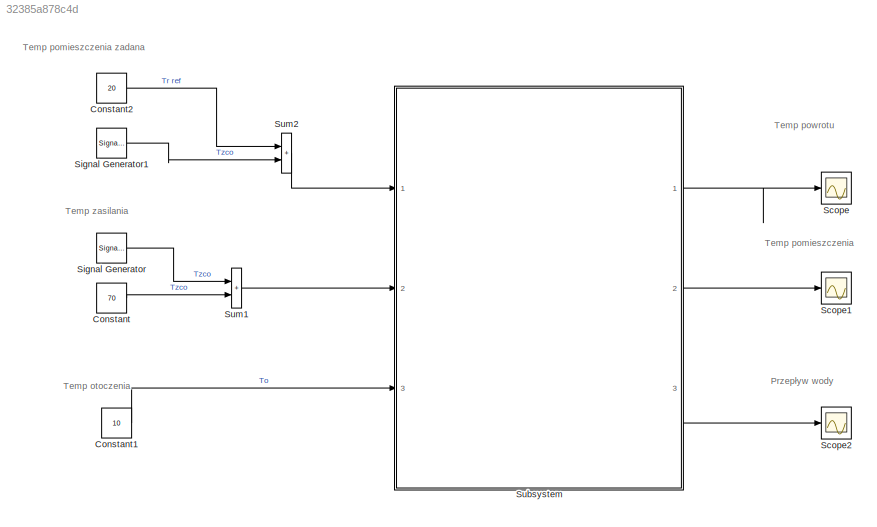
MODEL slx_32385a878c4d
KIND model
CONFIG AbsTol = auto
CONFIG EnableMultiTasking = off
CONFIG FixedStep = 0.1
CONFIG MaxStep = auto
CONFIG MinStep = auto
CONFIG RelTol = 1e-3
CONFIG SampleTimeConstraint = Unconstrained
CONFIG SolverName = ode4
CONFIG StartTime = 0.0
CONFIG StopTime = 70000
WORKSPACE source: mxarray member
WORKSPACE sample_time = 0.1
BLOCK [Constant] Constant
  Value = 70
BLOCK [Constant] Constant1
  Value = 10
BLOCK [Constant] Constant2
  Value = 20
BLOCK [Scope] Scope
  Floating = off
  NumInputPorts = 1
  Ports = [1]
  ScopeSpecificationString = Simulink.scopes.TimeScopeBlockCfg('CurrentConfiguration', extmgr.ConfigurationSet(extmgr.Configuration('Core','General UI',true),extmgr.Configuration('Core','Source UI',true),extmgr.Configuration('Sources','WiredSimulink',true),extmgr.Configuration('Visuals','Time Domain',true,'SerializedDisplays',{struct('MinYLimReal','3.82632','MaxYLimReal','65.56389','YLabelReal','','MinYLimMag','3.82632','MaxY...<+1367ch>
BLOCK [Scope] Scope1
  Floating = off
  NumInputPorts = 1
  Ports = [1]
  ScopeSpecificationString = Simulink.scopes.TimeScopeBlockCfg('CurrentConfiguration', extmgr.ConfigurationSet(extmgr.Configuration('Core','General UI',true),extmgr.Configuration('Core','Source UI',true),extmgr.Configuration('Sources','WiredSimulink',true,'DataLoggingVariableName','ScopeData1'),extmgr.Configuration('Visuals','Time Domain',true,'SerializedDisplays',{struct('MinYLimReal','7.46583','MaxYLimReal','32.80803','YLab...<+1429ch>
BLOCK [Scope] Scope2
  Floating = off
  NumInputPorts = 1
  Ports = [1]
  ScopeSpecificationString = Simulink.scopes.TimeScopeBlockCfg('CurrentConfiguration', extmgr.ConfigurationSet(extmgr.Configuration('Core','General UI',true),extmgr.Configuration('Core','Source UI',true),extmgr.Configuration('Sources','WiredSimulink',true,'DataLoggingVariableName','ScopeData1'),extmgr.Configuration('Visuals','Time Domain',true,'SerializedDisplays',{struct('MinYLimReal','-0.00059','MaxYLimReal','0.00534','YLab...<+1404ch>
BLOCK [SignalGenerator] Signal Generator
  Amplitude = 10
  Frequency = 0.001
  Ports = [0, 1]
  WaveForm = square
BLOCK [SignalGenerator] Signal Generator1
  Amplitude = 10
  Frequency = 0.00002
  Ports = [0, 1]
  WaveForm = square
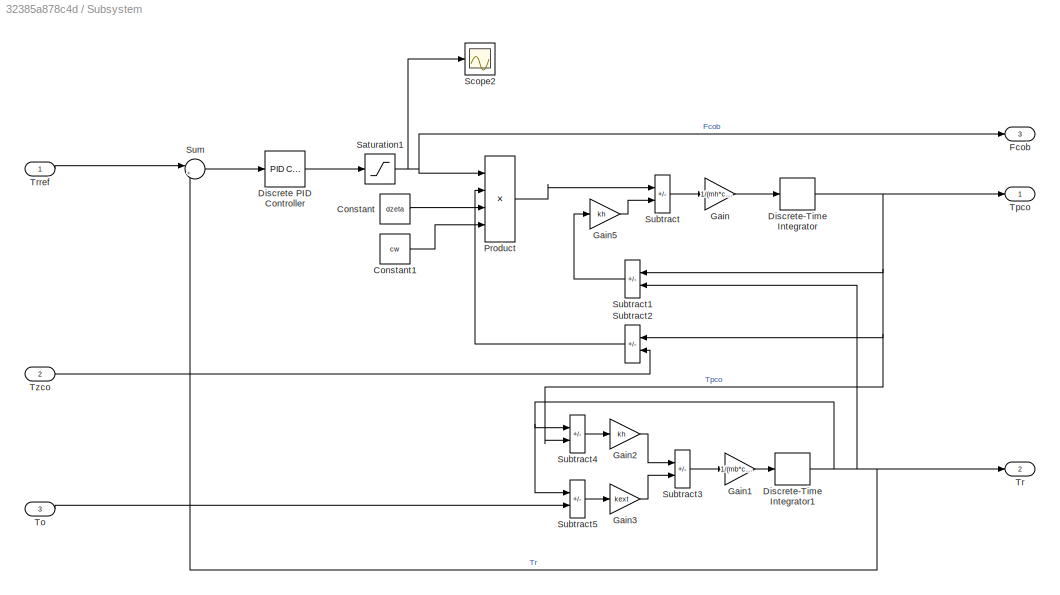
BLOCK [SubSystem] Subsystem
  Ports = [3, 3]
  RequestExecContextInheritance = off
  SystemSampleTime = sample_time
  TreatAsAtomicUnit = on
BLOCK [Constant] Subsystem/Constant
  Value = dzeta
BLOCK [Constant] Subsystem/Constant1
  Value = cw
BLOCK [Reference] Subsystem/Discrete PID Controller  REF=pid_lib/PID Controller
  Ports = [1, 1]
  SourceBlock = pid_lib/PID Controller
  SourceProductBaseCode = SL
  SourceType = PID 1dof
BLOCK [DiscreteIntegrator] Subsystem/Discrete-Time Integrator
  ICPrevOutput = DiscIntNeverNeededParam
  ICPrevScaledInput = DiscIntNeverNeededParam
  InitialCondition = 22
  InitialConditionSetting = Auto
  Ports = [1, 1]
  SampleTime = sample_time
BLOCK [DiscreteIntegrator] Subsystem/Discrete-Time Integrator1
  ICPrevOutput = DiscIntNeverNeededParam
  ICPrevScaledInput = DiscIntNeverNeededParam
  InitialCondition = 15
  InitialConditionSetting = Auto
  Ports = [1, 1]
  SampleTime = sample_time
BLOCK [Outport] Subsystem/Fcob
  Port = 3
BLOCK [Gain] Subsystem/Gain
  Gain = 1/(mh*ch)
BLOCK [Gain] Subsystem/Gain1
  Gain = 1/(mb*cb)
BLOCK [Gain] Subsystem/Gain2
  Gain = kh
BLOCK [Gain] Subsystem/Gain3
  Gain = kext
BLOCK [Gain] Subsystem/Gain5
  Gain = kh
BLOCK [Product] Subsystem/Product
  Inputs = 4
  Ports = [4, 1]
BLOCK [Saturate] Subsystem/Saturation1
  LowerLimit = 0
  UpperLimit = 30/3600
BLOCK [Scope] Subsystem/Scope2
  Floating = off
  NumInputPorts = 1
  Ports = [1]
  ScopeSpecificationString = Simulink.scopes.TimeScopeBlockCfg('CurrentConfiguration', extmgr.ConfigurationSet(extmgr.Configuration('Core','General UI',true),extmgr.Configuration('Core','Source UI',true),extmgr.Configuration('Sources','WiredSimulink',true,'DataLoggingVariableName','ScopeData2'),extmgr.Configuration('Visuals','Time Domain',true,'SerializedDisplays',{struct('MinYLimReal','-0.00032','MaxYLimReal','0.01238','YLab...<+1465ch>
BLOCK [Sum] Subsystem/Subtract
  IconShape = rectangular
  Inputs = +-
  Ports = [2, 1]
BLOCK [Sum] Subsystem/Subtract1
  IconShape = rectangular
  Inputs = +-
  NameLocation = top
  Ports = [2, 1]
BLOCK [Sum] Subsystem/Subtract2
  IconShape = rectangular
  Inputs = -+
  NameLocation = top
  Ports = [2, 1]
BLOCK [Sum] Subsystem/Subtract3
  IconShape = rectangular
  Inputs = +-
  Ports = [2, 1]
BLOCK [Sum] Subsystem/Subtract4
  IconShape = rectangular
  Inputs = -+
  Ports = [2, 1]
BLOCK [Sum] Subsystem/Subtract5
  IconShape = rectangular
  Inputs = +-
  Ports = [2, 1]
BLOCK [Sum] Subsystem/Sum
  Inputs = |+-
  Ports = [2, 1]
BLOCK [Inport] Subsystem/To
  Port = 3
BLOCK [Outport] Subsystem/Tpco
BLOCK [Outport] Subsystem/Tr
  Port = 2
BLOCK [Inport] Subsystem/Trref
BLOCK [Inport] Subsystem/Tzco
  Port = 2
BLOCK [Sum] Sum1
  IconShape = rectangular
  Ports = [2, 1]
BLOCK [Sum] Sum2
  IconShape = rectangular
  Ports = [2, 1]
ANNOTATION (root): Przepływ wody
ANNOTATION (root): Temp otoczenia
ANNOTATION (root): Temp pomieszczenia
ANNOTATION (root): Temp pomieszczenia zadana
ANNOTATION (root): Temp powrotu
ANNOTATION (root): Temp zasilania
LINE Constant1:1 -> Subsystem:3
LINE Constant2:1 -> Sum2:1
LINE Constant:1 -> Sum1:2
LINE Signal Generator1:1 -> Sum2:2
LINE Signal Generator:1 -> Sum1:1
LINE Subsystem/Constant1:1 -> Subsystem/Product:4
LINE Subsystem/Constant:1 -> Subsystem/Product:3
LINE Subsystem/Discrete PID Controller:1 -> Subsystem/Saturation1:1
NET Subsystem/Discrete-Time Integrator1:1 -> Subsystem/Subtract1:2, Subsystem/Subtract4:1, Subsystem/Subtract5:1, Subsystem/Sum:2, Subsystem/Tr:1
NET Subsystem/Discrete-Time Integrator:1 -> Subsystem/Subtract1:1, Subsystem/Subtract2:1, Subsystem/Subtract4:2, Subsystem/Tpco:1
LINE Subsystem/Gain1:1 -> Subsystem/Discrete-Time Integrator1:1
LINE Subsystem/Gain2:1 -> Subsystem/Subtract3:1
LINE Subsystem/Gain3:1 -> Subsystem/Subtract3:2
LINE Subsystem/Gain5:1 -> Subsystem/Subtract:2
LINE Subsystem/Gain:1 -> Subsystem/Discrete-Time Integrator:1
LINE Subsystem/Product:1 -> Subsystem/Subtract:1
NET Subsystem/Saturation1:1 -> Subsystem/Fcob:1, Subsystem/Product:1, Subsystem/Scope2:1
LINE Subsystem/Subtract1:1 -> Subsystem/Gain5:1
LINE Subsystem/Subtract2:1 -> Subsystem/Product:2
LINE Subsystem/Subtract3:1 -> Subsystem/Gain1:1
LINE Subsystem/Subtract4:1 -> Subsystem/Gain2:1
LINE Subsystem/Subtract5:1 -> Subsystem/Gain3:1
LINE Subsystem/Subtract:1 -> Subsystem/Gain:1
LINE Subsystem/Sum:1 -> Subsystem/Discrete PID Controller:1
LINE Subsystem/To:1 -> Subsystem/Subtract5:2
LINE Subsystem/Trref:1 -> Subsystem/Sum:1
LINE Subsystem/Tzco:1 -> Subsystem/Subtract2:2
LINE Subsystem:1 -> Scope:1
LINE Subsystem:2 -> Scope1:1
LINE Subsystem:3 -> Scope2:1
LINE Sum1:1 -> Subsystem:2
LINE Sum2:1 -> Subsystem:1
note: NET lines group one-source signal fan-out (src -> all destinations, sorted); 1:1 wires keep LINE
